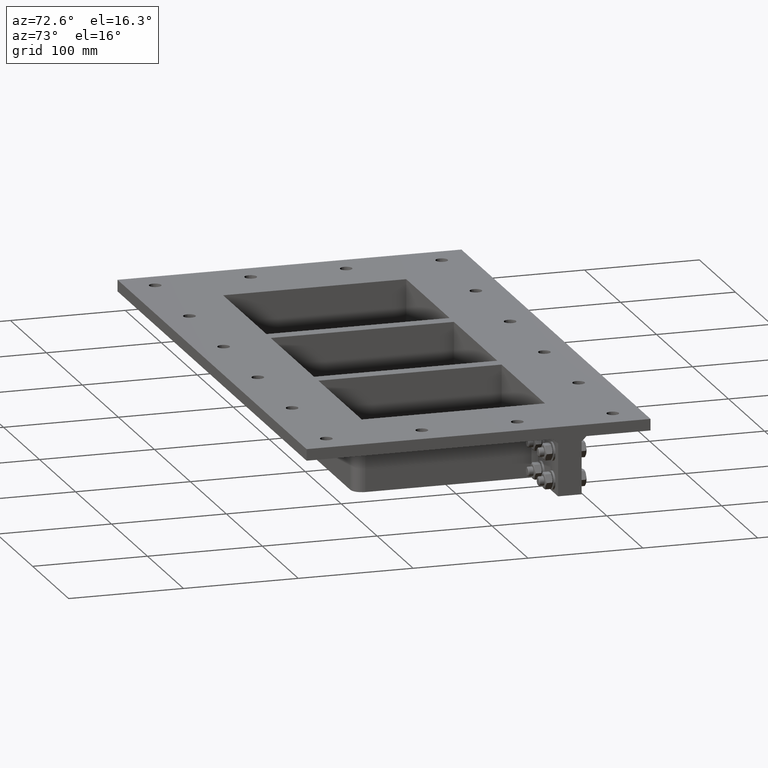
[diagram: clean part render]
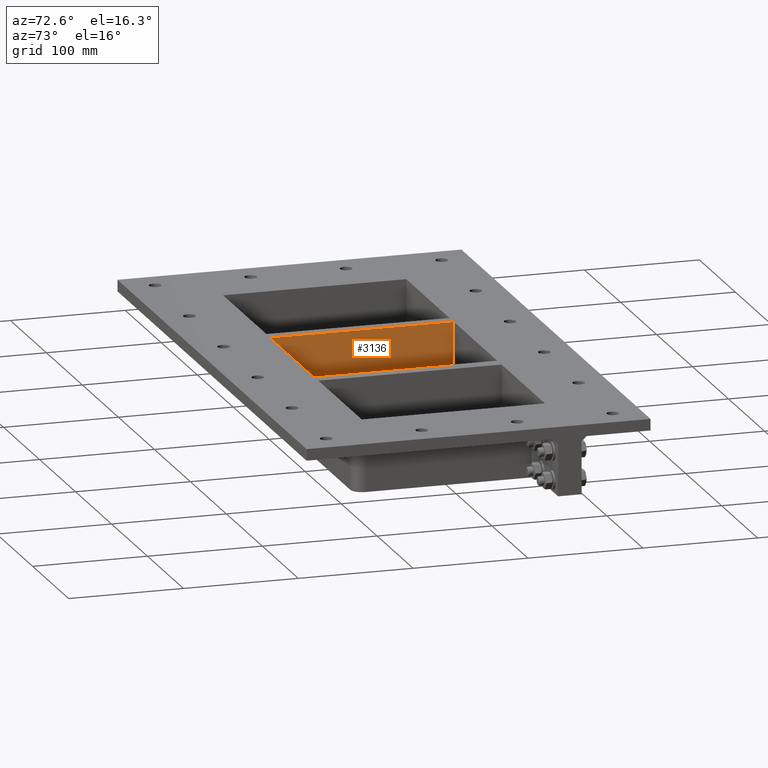
[diagram: same view with one face highlighted and labeled with its STEP entity id]
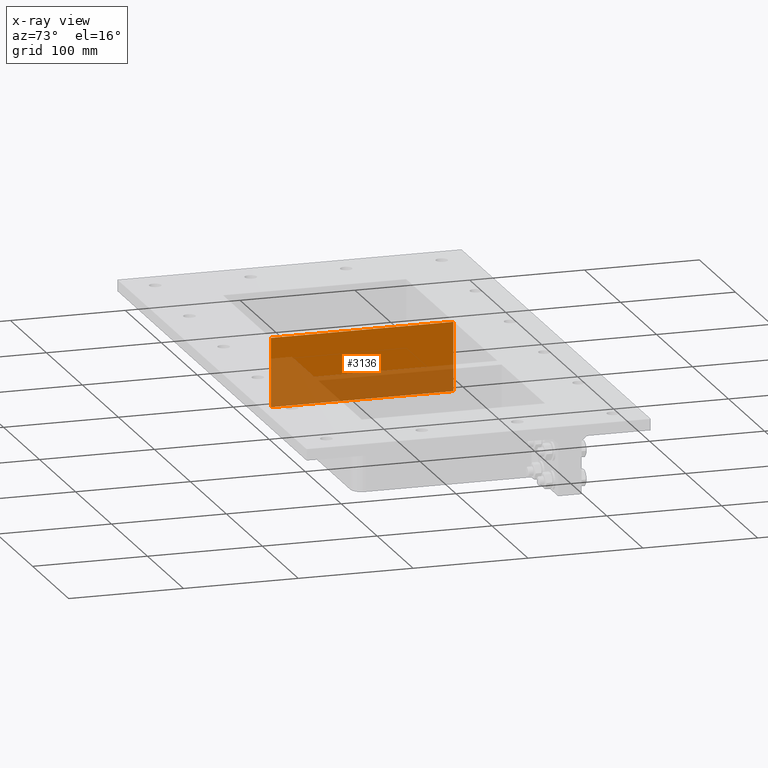
[diagram: x-ray of the same camera — body ghosted, the highlighted face saturated]
A machine part, auxiliary view. The second image highlights one B-rep face of the part: STEP entity #3136.
The next image is the same camera in x-ray: the body ghosted, the highlighted face saturated — about 44% of this face is hidden behind the body in this view.
In plain terms, the highlighted planar face has unit normal (-1, -0, 0).
Its self-contained STEP definition (entity closure, byte-faithful):
#577=FACE_OUTER_BOUND('',#790,.T.);
#790=EDGE_LOOP('',(#2461,#2462,#2463,#2464));
#1030=LINE('',#4970,#1273);
#1053=LINE('',#5018,#1296);
#1062=LINE('',#5053,#1305);
#1081=LINE('',#5092,#1324);
#1273=VECTOR('',#4023,10.);
#1296=VECTOR('',#4054,10.);
#1305=VECTOR('',#4091,10.);
#1324=VECTOR('',#4150,10.);
#1527=VERTEX_POINT('',#4967);
#1528=VERTEX_POINT('',#4969);
#1548=VERTEX_POINT('',#5015);
#1549=VERTEX_POINT('',#5017);
#1827=EDGE_CURVE('',#1527,#1528,#1030,.T.);
#1852=EDGE_CURVE('',#1548,#1549,#1053,.T.);
#1871=EDGE_CURVE('',#1527,#1549,#1062,.T.);
#1890=EDGE_CURVE('',#1548,#1528,#1081,.T.);
#2461=ORIENTED_EDGE('',*,*,#1871,.T.);
#2462=ORIENTED_EDGE('',*,*,#1852,.F.);
#2463=ORIENTED_EDGE('',*,*,#1890,.T.);
#2464=ORIENTED_EDGE('',*,*,#1827,.F.);
#3017=PLANE('',#3575);
#3136=ADVANCED_FACE('',(#577),#3017,.F.);
#3575=AXIS2_PLACEMENT_3D('',#5093,#4151,#4152);
#4023=DIRECTION('',(4.45481339034546E-16,-1.,0.));
#4054=DIRECTION('',(-4.45481339034546E-16,1.,0.));
#4091=DIRECTION('',(0.,0.,1.));
#4150=DIRECTION('',(0.,0.,-1.));
#4151=DIRECTION('center_axis',(-1.,-4.45481339034546E-16,0.));
#4152=DIRECTION('ref_axis',(-4.45481339034546E-16,1.,0.));
#4967=CARTESIAN_POINT('',(-60.2500000000001,79.25,-60.));
#4969=CARTESIAN_POINT('',(-60.25,-79.75,-60.));
#4970=CARTESIAN_POINT('',(-60.25,-39.875,-60.));
#5015=CARTESIAN_POINT('',(-60.25,-79.75,0.));
#5017=CARTESIAN_POINT('',(-60.2500000000001,79.25,0.));
#5018=CARTESIAN_POINT('',(-60.25,-39.875,0.));
#5053=CARTESIAN_POINT('',(-60.2500000000001,79.25,0.));
#5092=CARTESIAN_POINT('',(-60.25,-79.75,0.));
#5093=CARTESIAN_POINT('Origin',(-60.25,-79.75,0.));